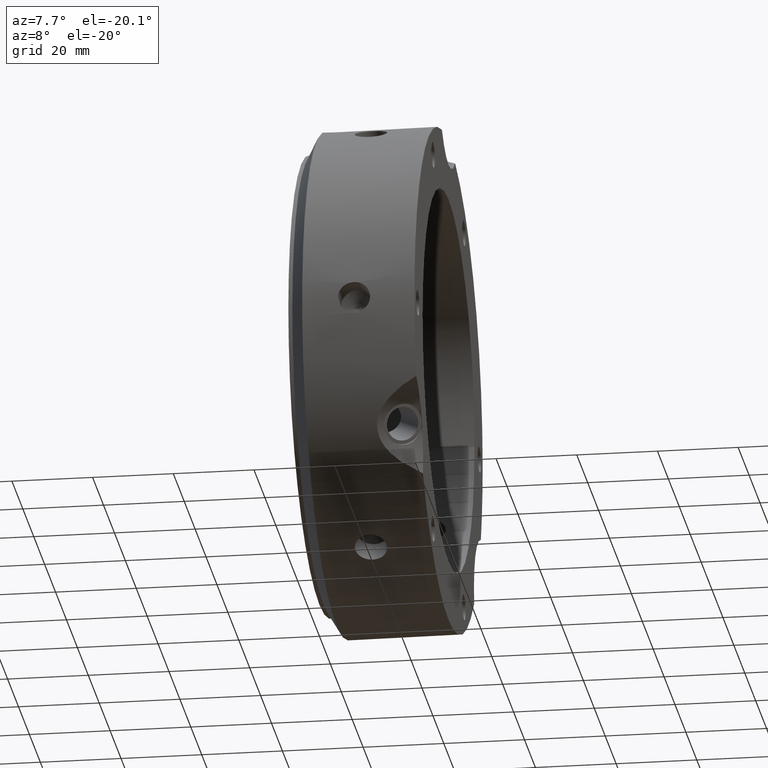
[diagram: clean part render]
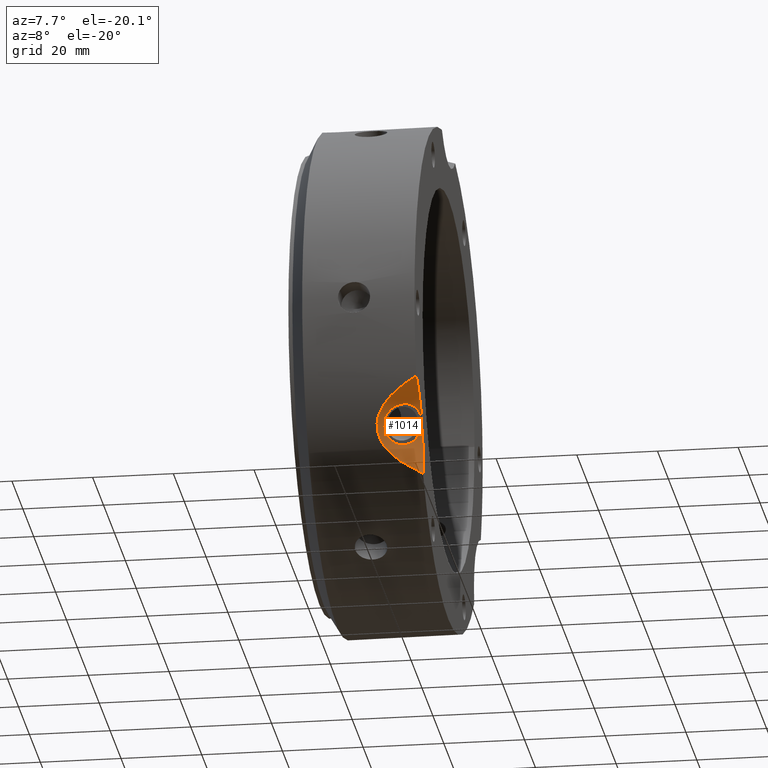
[diagram: same view with one face highlighted and labeled with its STEP entity id]
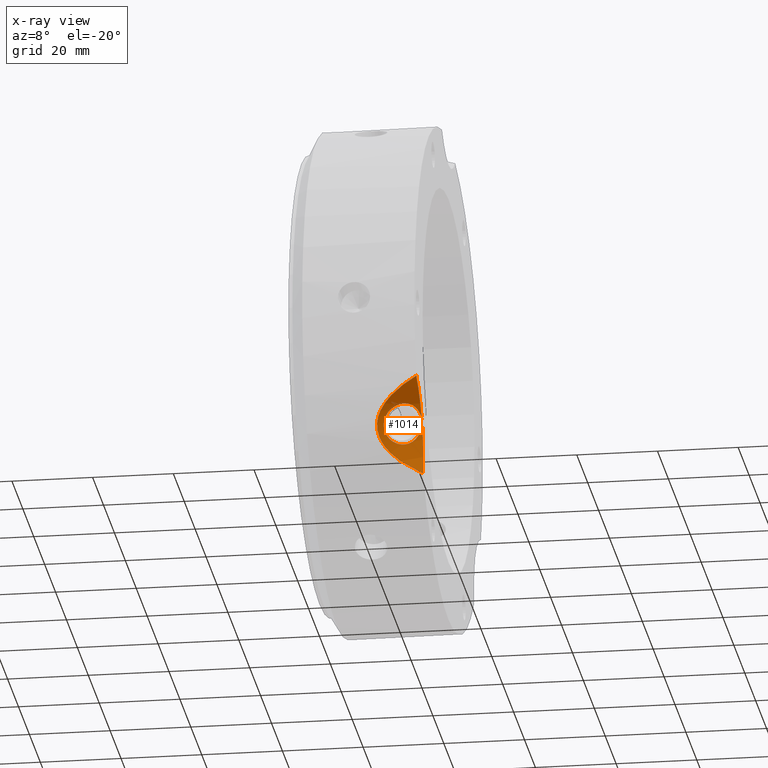
[diagram: x-ray of the same camera — body ghosted, the highlighted face saturated]
A machine part, auxiliary view. The second image highlights one B-rep face of the part: STEP entity #1014.
The next image is the same camera in x-ray: the body ghosted, the highlighted face saturated — about 0% of this face is hidden behind the body in this view.
In plain terms, the highlighted cylindrical surface (partial cylindrical patch) has radius 20 mm, axis along (-0.866, -0.433, -0.25).
Its self-contained STEP definition (entity closure, byte-faithful):
#926=CARTESIAN_POINT('',(35.321507575751177,-67.269681525945217,-38.838168737304841));
#927=DIRECTION('',(-0.866025403784438,-0.43301270189222,-0.25));
#928=DIRECTION('',(-0.5,0.75,0.433012701892219));
#929=AXIS2_PLACEMENT_3D('',#926,#927,#928);
#930=CYLINDRICAL_SURFACE('',#929,19.999999999999996);
#931=CARTESIAN_POINT('',(31.999999999999886,-48.778035500345915,-28.51949830270755));
#932=VERTEX_POINT('',#931);
#933=CARTESIAN_POINT('',(31.999999999999986,-46.983258561219429,-41.216785597249121));
#934=VERTEX_POINT('',#933);
#935=CARTESIAN_POINT('',(31.999999999999986,-68.930435313820809,-39.797005383792509));
#936=DIRECTION('',(-1.0,0.0,0.0));
#937=DIRECTION('',(0.0,0.866025403784439,0.5));
#938=AXIS2_PLACEMENT_3D('',#935,#936,#937);
#939=ELLIPSE('',#938,23.094010767585029,19.999999999999993);
#940=EDGE_CURVE('',#932,#934,#939,.T.);
#941=ORIENTED_EDGE('',*,*,#940,.F.);
#942=CARTESIAN_POINT('',(31.999999999999886,-49.087627783504828,-27.983268738645044));
#943=VERTEX_POINT('',#942);
#944=CARTESIAN_POINT('',(31.999999999999794,-49.087627783504821,-27.983268738645059));
#945=CARTESIAN_POINT('',(31.975286752579002,-49.383532368225865,-27.518949770019017));
#946=CARTESIAN_POINT('',(31.881179203266431,-49.747590421369978,-27.073367516776582));
#947=CARTESIAN_POINT('',(31.522336300092331,-50.618538681979913,-26.241476829102645));
#948=CARTESIAN_POINT('',(31.226595311853433,-51.139778192629599,-25.882400381982571));
#949=CARTESIAN_POINT('',(30.527797341769308,-52.105810492107977,-25.398123860367345));
#950=CARTESIAN_POINT('',(30.07723764741991,-52.615943041593525,-25.240006323100793));
#951=CARTESIAN_POINT('',(29.052997990353088,-53.515058056802864,-25.157130950566831));
#952=CARTESIAN_POINT('',(28.478084891561206,-53.902571807799745,-25.231691597512107));
#953=CARTESIAN_POINT('',(27.363529362019179,-54.459849572570754,-25.553436065016047));
#954=CARTESIAN_POINT('',(26.753151792186983,-54.664981155885918,-25.821039361369806));
#955=CARTESIAN_POINT('',(25.602581791227827,-54.853270969689575,-26.531728204652509));
#956=CARTESIAN_POINT('',(25.063169433967296,-54.838124446008997,-26.975626057162671));
#957=CARTESIAN_POINT('',(24.19894410940401,-54.653603793854309,-27.911108538735053));
#958=CARTESIAN_POINT('',(23.815628644850626,-54.471892509600764,-28.466211698762432));
#959=CARTESIAN_POINT('',(23.302421354518835,-53.977254572049524,-29.630622205989035));
#960=CARTESIAN_POINT('',(23.173488097609784,-53.665386918272432,-30.240801295410861));
#961=CARTESIAN_POINT('',(23.173488097609784,-53.021995611759394,-31.355187727439564));
#962=CARTESIAN_POINT('',(23.302421354518835,-52.649498846350582,-31.930362582940084));
#963=CARTESIAN_POINT('',(23.815628644850626,-51.888408735434439,-32.940936856148305));
#964=CARTESIAN_POINT('',(24.19894410940401,-51.49853093925649,-33.375855024479854));
#965=CARTESIAN_POINT('',(25.063169433967296,-50.780639671496843,-34.003395837554883));
#966=CARTESIAN_POINT('',(25.602581791227816,-50.403786116377972,-34.238462038096358));
#967=CARTESIAN_POINT('',(26.75315179218698,-49.694166617007134,-34.43074269770991));
#968=CARTESIAN_POINT('',(27.363529362019179,-49.359849572570752,-34.386895183617334));
#969=CARTESIAN_POINT('',(27.920807126790194,-49.081210690185245,-34.226022949865367));
#970=CARTESIAN_POINT('',(28.478084891561206,-48.802571807799744,-34.065150716113394));
#971=CARTESIAN_POINT('',(29.05299799035307,-48.544243517924087,-33.766834286906942));
#972=CARTESIAN_POINT('',(30.077237647419896,-48.166458188281922,-32.946740156544642));
#973=CARTESIAN_POINT('',(30.527797341769308,-48.048325717595823,-32.425893640759554));
#974=CARTESIAN_POINT('',(31.226595311853433,-47.984705338031787,-31.347146867727375));
#975=CARTESIAN_POINT('',(31.522336300092331,-48.035054907813581,-30.716201986488535));
#976=CARTESIAN_POINT('',(31.88117920326642,-48.320019246205931,-29.545993323581534));
#977=CARTESIAN_POINT('',(31.975286752578995,-48.523875770417327,-29.007918674485239));
#978=CARTESIAN_POINT('',(31.999999999999787,-48.778035500345922,-28.519498302707543));
#979=B_SPLINE_CURVE_WITH_KNOTS('',3,(#944,#945,#946,#947,#948,#949,#950,#951,#952,#953,#954,#955,#956,#957,#958,#959,#960,#961,#962,#963,#964,#965,#966,#967,#968,#969,#970,#971,#972,#973,#974,#975,#976,#977,#978),.UNSPECIFIED.,.F.,.U.,(4,2,2,2,2,2,2,2,2,2,2,2,3,2,2,2,4),(0.802813320346787,0.965145536866459,1.158162928820371,1.351209609322734,1.544256289825096,1.737302970327459,1.930349650829822,2.123367042783733,2.316384434737644,2.509401826691556,2.702419218645467,2.89546589914783,3.088512579650192,3.281559260152555,3.474605940654918,3.667623332608829,3.829955549128491),.UNSPECIFIED.);
#980=EDGE_CURVE('',#943,#932,#979,.T.);
#981=ORIENTED_EDGE('',*,*,#980,.F.);
#982=CARTESIAN_POINT('',(31.999999999999986,-59.186412670164032,-20.080302667964148));
#983=VERTEX_POINT('',#982);
#984=CARTESIAN_POINT('',(31.999999999999986,-68.930435313820809,-39.797005383792509));
#985=DIRECTION('',(-1.0,0.0,0.0));
#986=DIRECTION('',(0.0,0.866025403784439,0.5));
#987=AXIS2_PLACEMENT_3D('',#984,#985,#986);
#988=ELLIPSE('',#987,23.094010767585029,19.999999999999993);
#989=EDGE_CURVE('',#983,#943,#988,.T.);
#990=ORIENTED_EDGE('',*,*,#989,.F.);
#991=CARTESIAN_POINT('',(31.999999999999986,-46.983258561219415,-41.216785597249114));
#992=CARTESIAN_POINT('',(30.601411015312205,-47.482137332988273,-40.648110724012902));
#993=CARTESIAN_POINT('',(29.268340309508222,-48.012583235901765,-40.023167325727201));
#994=CARTESIAN_POINT('',(26.423768434298101,-49.313465945771682,-38.416048342990564));
#995=CARTESIAN_POINT('',(24.794616525335655,-50.196968125257925,-37.272999981403686));
#996=CARTESIAN_POINT('',(22.985244146828805,-51.629436843124722,-35.232680933835645));
#997=CARTESIAN_POINT('',(22.486747935300684,-52.124915630844527,-34.497872258528695));
#998=CARTESIAN_POINT('',(21.797753926030047,-53.125499370825111,-32.936170642489159));
#999=CARTESIAN_POINT('',(21.607695154586768,-53.630597758231332,-32.109079842453781));
#1000=CARTESIAN_POINT('',(21.607695154586768,-54.622577714823493,-30.390920157546205));
#1001=CARTESIAN_POINT('',(21.797753926030047,-55.086310165187413,-29.539946722624162));
#1002=CARTESIAN_POINT('',(22.486747935300684,-55.938491567818573,-27.892564977167559));
#1003=CARTESIAN_POINT('',(22.985244146828769,-56.327115153695708,-27.096063422312415));
#1004=CARTESIAN_POINT('',(24.794616525335616,-57.377848921781492,-24.835349598729216));
#1005=CARTESIAN_POINT('',(26.423768434298101,-57.92600675092676,-23.49869008620179));
#1006=CARTESIAN_POINT('',(29.268340309508226,-58.667371261945945,-21.568533120742181));
#1007=CARTESIAN_POINT('',(30.601411015312205,-58.943365169331983,-20.796681794342867));
#1008=CARTESIAN_POINT('',(31.999999999999989,-59.18641267016401,-20.080302667964155));
#1009=B_SPLINE_CURVE_WITH_KNOTS('',3,(#991,#992,#993,#994,#995,#996,#997,#998,#999,#1000,#1001,#1002,#1003,#1004,#1005,#1006,#1007,#1008),.UNSPECIFIED.,.F.,.U.,(4,2,2,2,2,2,2,2,4),(2.306237719438578,2.766040018541415,3.361227992496706,3.658821979474351,3.956415966451996,4.254009953429642,4.551603940407287,5.146791914362578,5.606594213465418),.UNSPECIFIED.);
#1010=EDGE_CURVE('',#934,#983,#1009,.T.);
#1011=ORIENTED_EDGE('',*,*,#1010,.F.);
#1012=EDGE_LOOP('',(#941,#981,#990,#1011));
#1013=FACE_OUTER_BOUND('',#1012,.T.);
#1014=ADVANCED_FACE('',(#1013),#930,.F.);